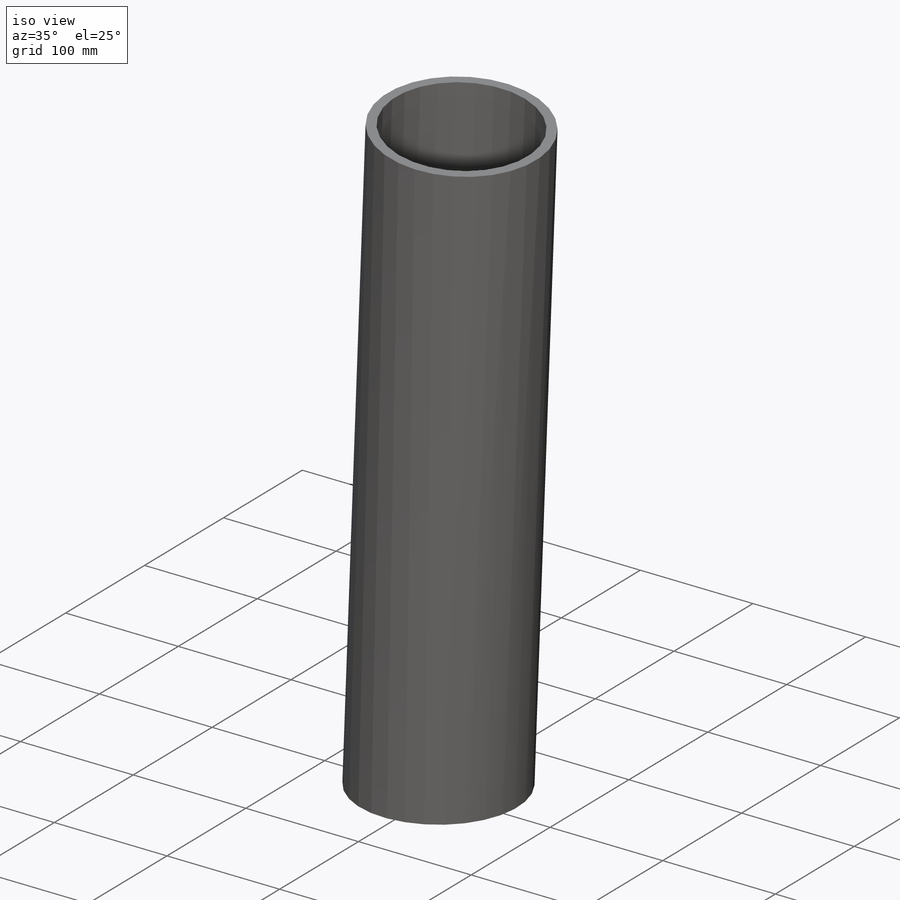
[diagram: iso view]
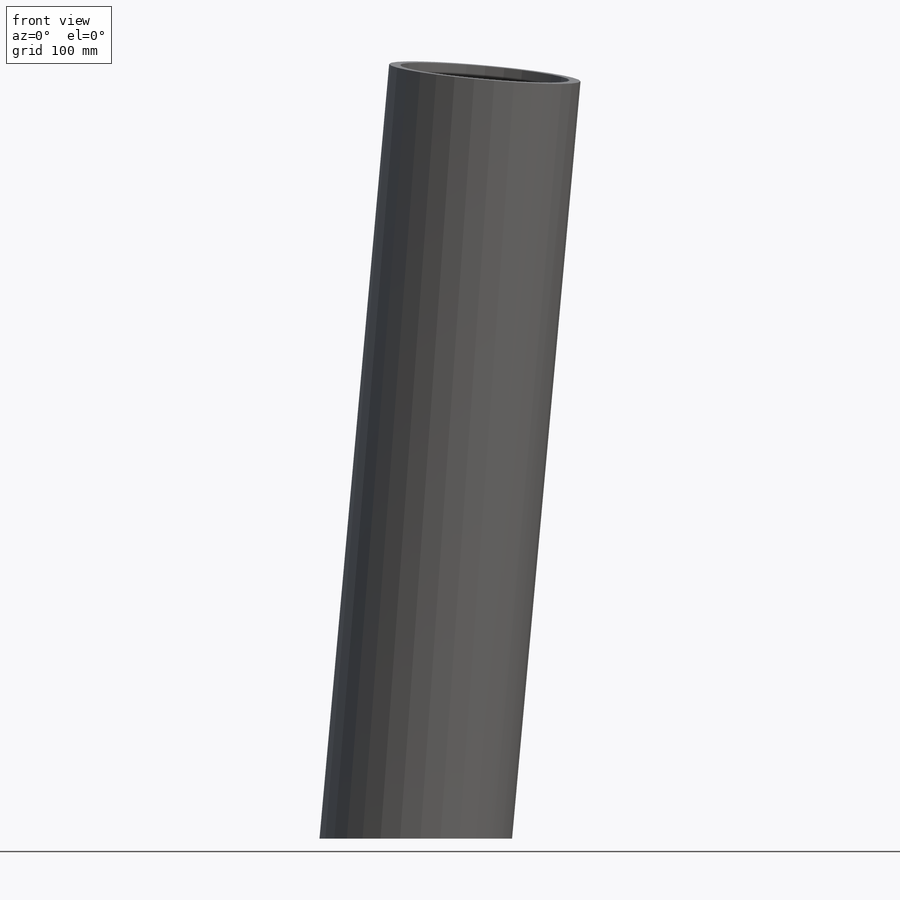
[diagram: front view]
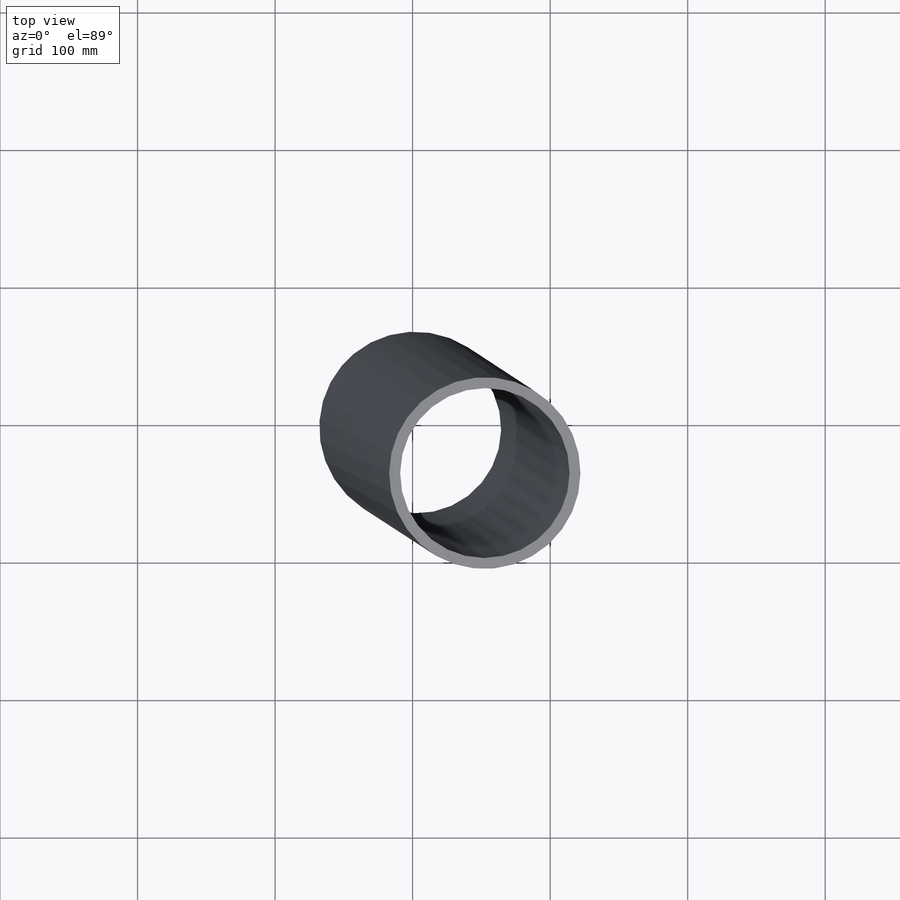
[diagram: top view]
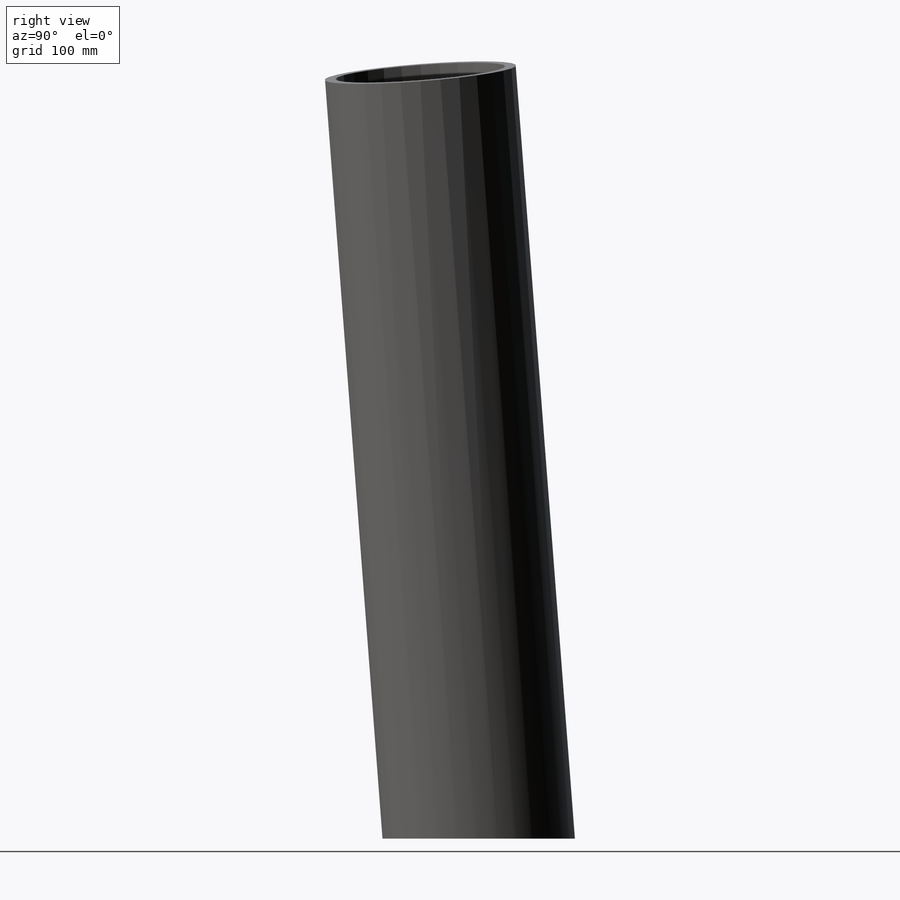
[diagram: right view]
SOLIDWORKS PART (.sldprt)
format: sldprt  version: not decoded by parser v0  size: 168,448 bytes
history: native  units: mm
features: plane x4, sketch x4, material x1, revolve x1, cut_extrude x1 (+8 scaffold rows collapsed)
feature tree (19):
  scaffold x8  (default folders/planes/origin — collapsed)
  material  "Material <nicht festgelegt>"
  plane  "Ebene vorne"
  plane  "Ebene oben"
  plane  "Ebene rechts"
  sketch  "Skizze2"
  plane  "4,36Grad Ebene"
  sketch  "Skizze3"  dims[c1.D1=~578.416225mm c2.D1=5.143deg]
  sketch  "Skizze4"  dims[c1.D1=~586.000068mm c2.D1=90.0deg c2.D2=61.85mm c2.D3=8.0mm]
  revolve  "Rotation1"  Angle=360deg
  sketch  "Skizze5"  dims[D1=100.0mm D2=25.0mm]
  cut_extrude  "Schnitt-Linear austragen1"  Depth=80mm
decode coverage: 5 of 6 modeling features carry decoded parameters
note: ~ marks probable driven/reference dimensions
note: suppression state not decoded; provenance and decode notes live in map.json
